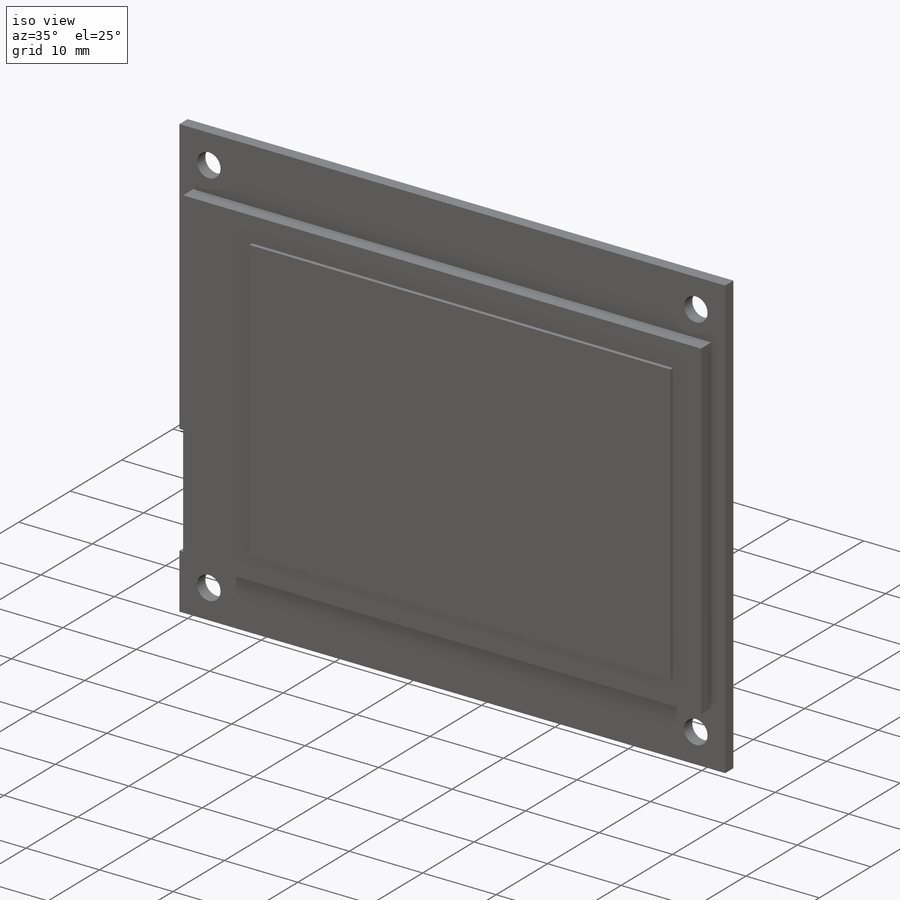
[diagram: iso view]
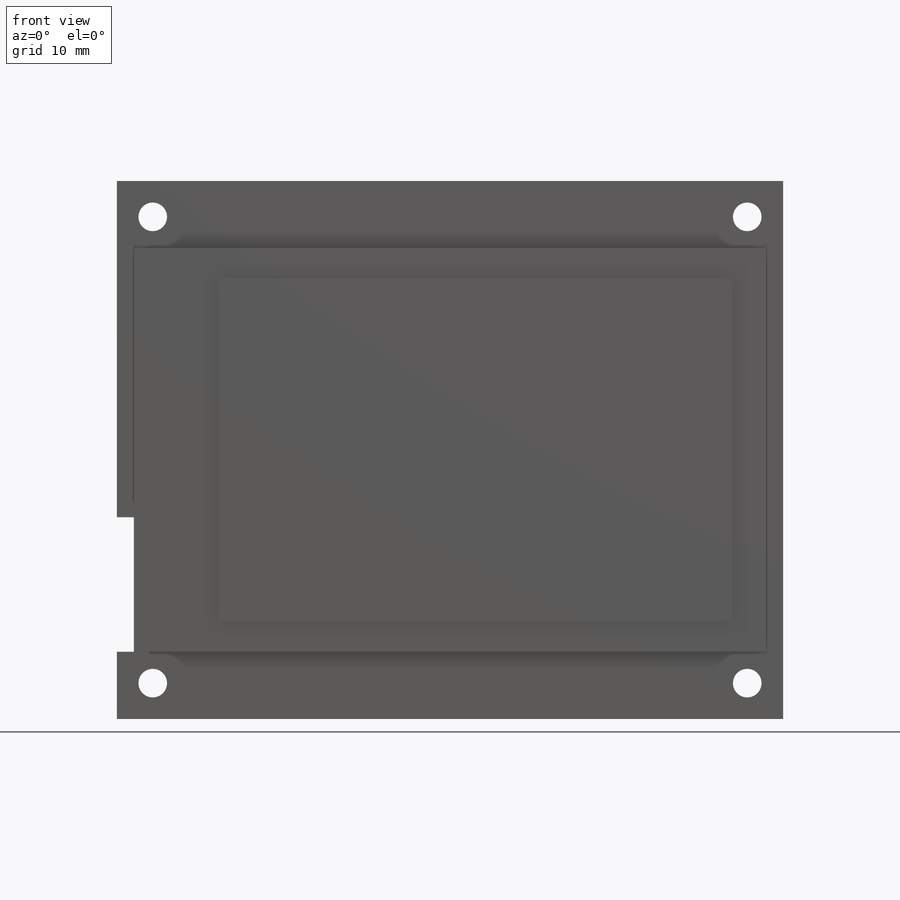
[diagram: front view]
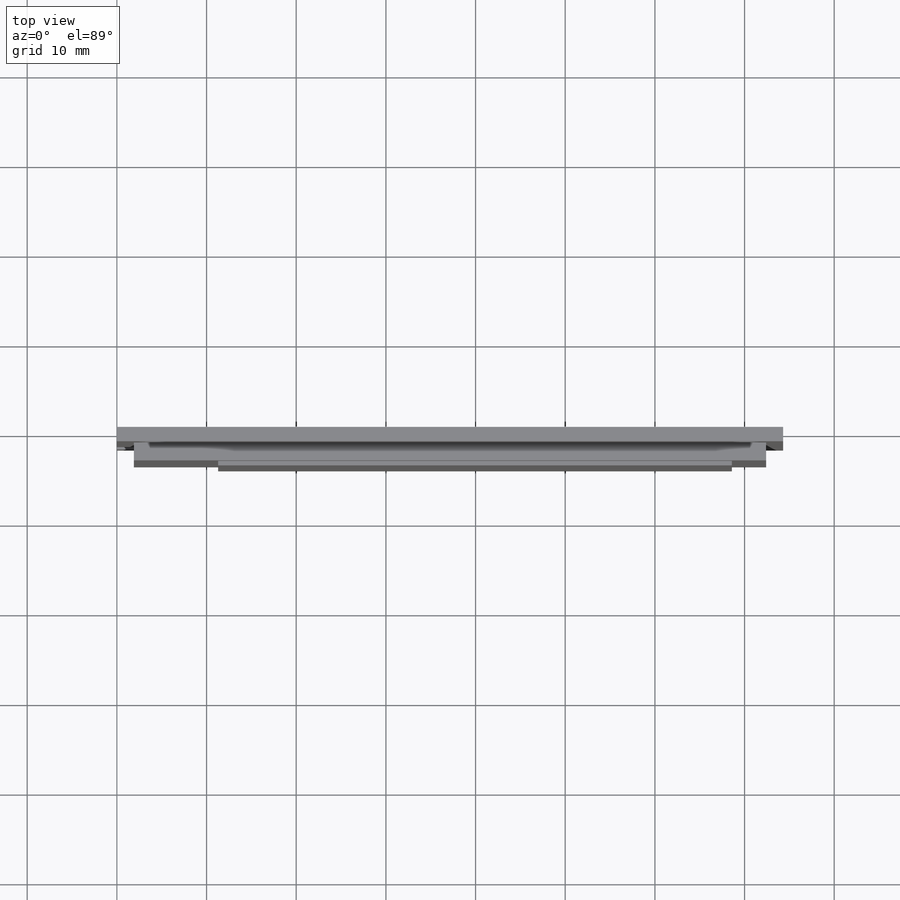
[diagram: top view]
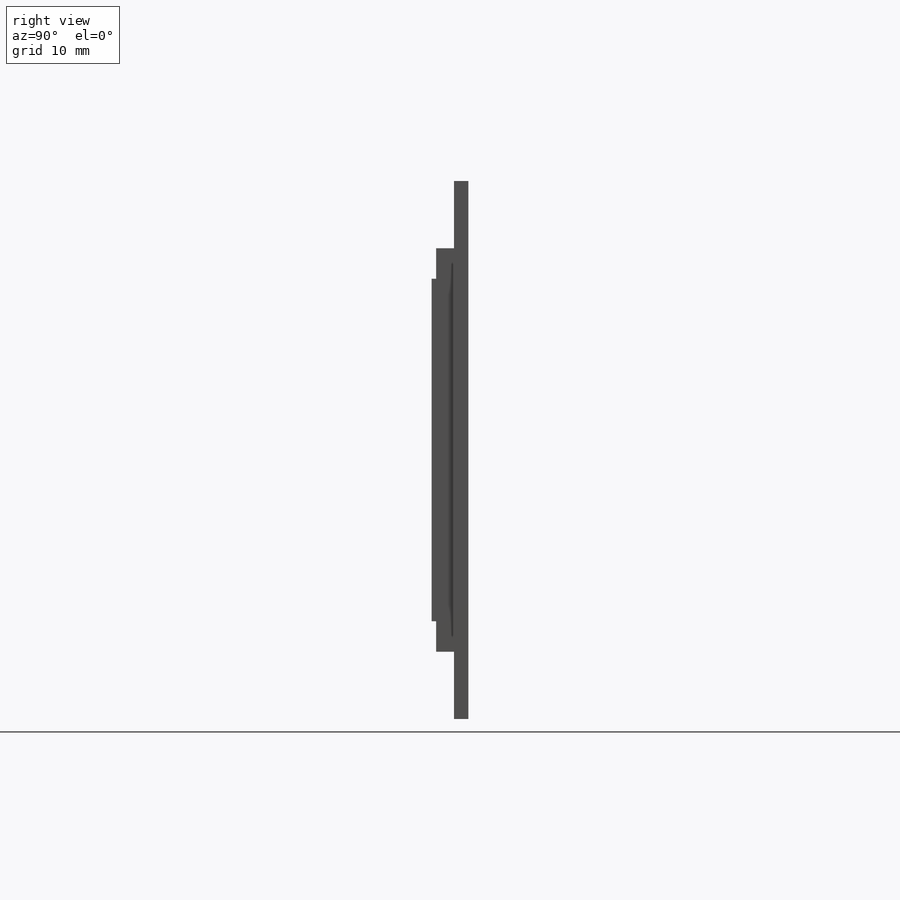
[diagram: right view]
SOLIDWORKS PART (.sldprt)
format: sldprt  version: not decoded by parser v0  size: 333,312 bytes
history: native  units: mm
features: sketch x6, extrude x3, material x1, cut_extrude x1, hole x1 (+12 scaffold rows collapsed)
feature tree (24):
  scaffold x12  (default folders/planes/origin — collapsed)
  material  "Ceramic Porcelain"
  sketch  "Sketch1"  dims[D1=74.3mm D2=60.0mm]
  extrude  "Boss-Extrude1"  Depth=1.6mm
  sketch  "Sketch2"  dims[D1=7.5mm D2=1.9mm D3=15.0mm]
  cut_extrude  "Cut-Extrude1"  [1 undecoded]
  hole  "Ø3.2 (3.2) Diameter Hole1"  Diameter=3.2mm Depth=60mm
  sketch  "Sketch4"  dims[D1=66.3mm D2=52.0mm D3=4.0mm D4=4.0mm]
  sketch  "Sketch3"  dims[hole-wizard template sketch: 50 standard entries collapsed; hole parameters above]
  sketch  "Sketch6"  dims[D1=1.9mm D2=1.9mm D3=7.5mm D4=7.5mm]
  extrude  "Boss-Extrude2"  Depth=2mm
  sketch  "Sketch7"  dims[D1=57.288mm D2=38.192mm D3=3.82mm D4=19.096mm]
  extrude  "Boss-Extrude3"  Depth=0.5mm
decode coverage: 10 of 11 modeling features carry decoded parameters
note: ~ marks probable driven/reference dimensions
note: 1 parameter value undecoded
note: suppression state not decoded; provenance and decode notes live in map.json
